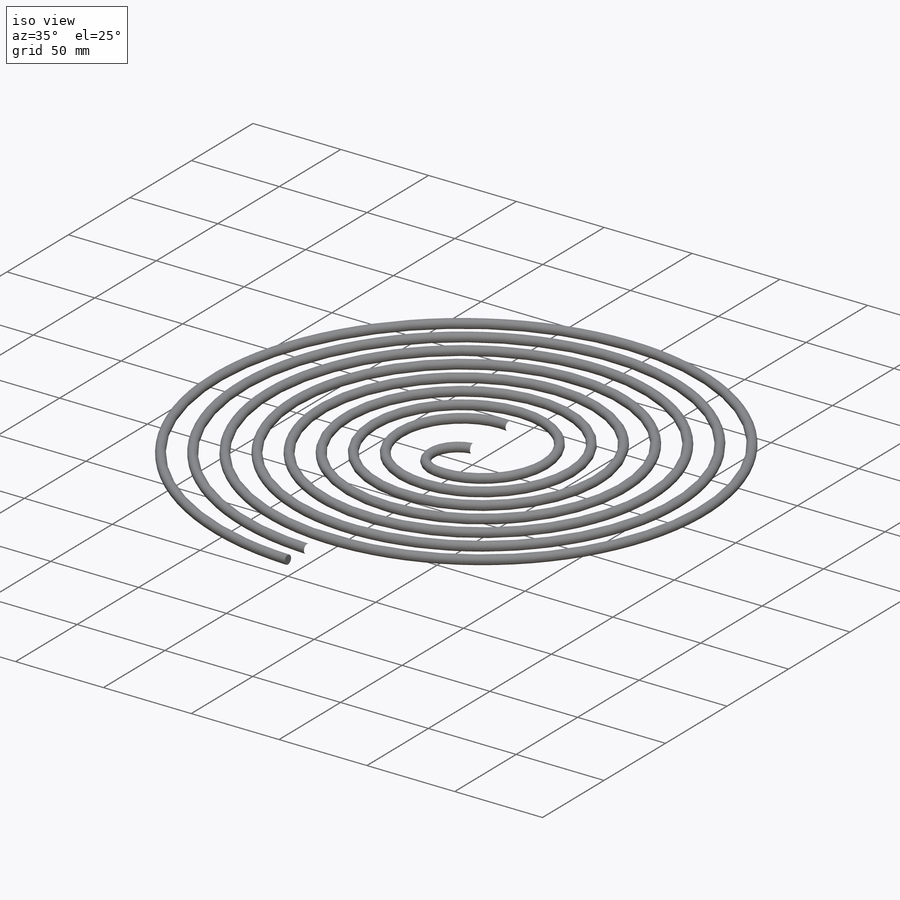
[diagram: iso view]
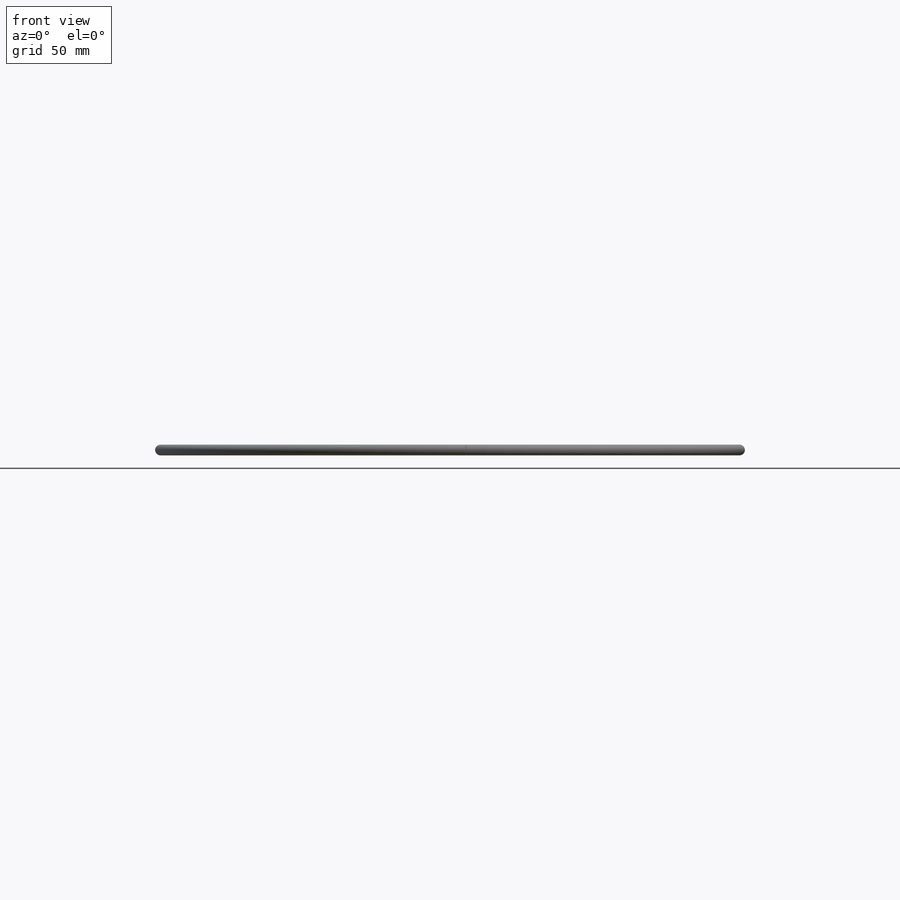
[diagram: front view]
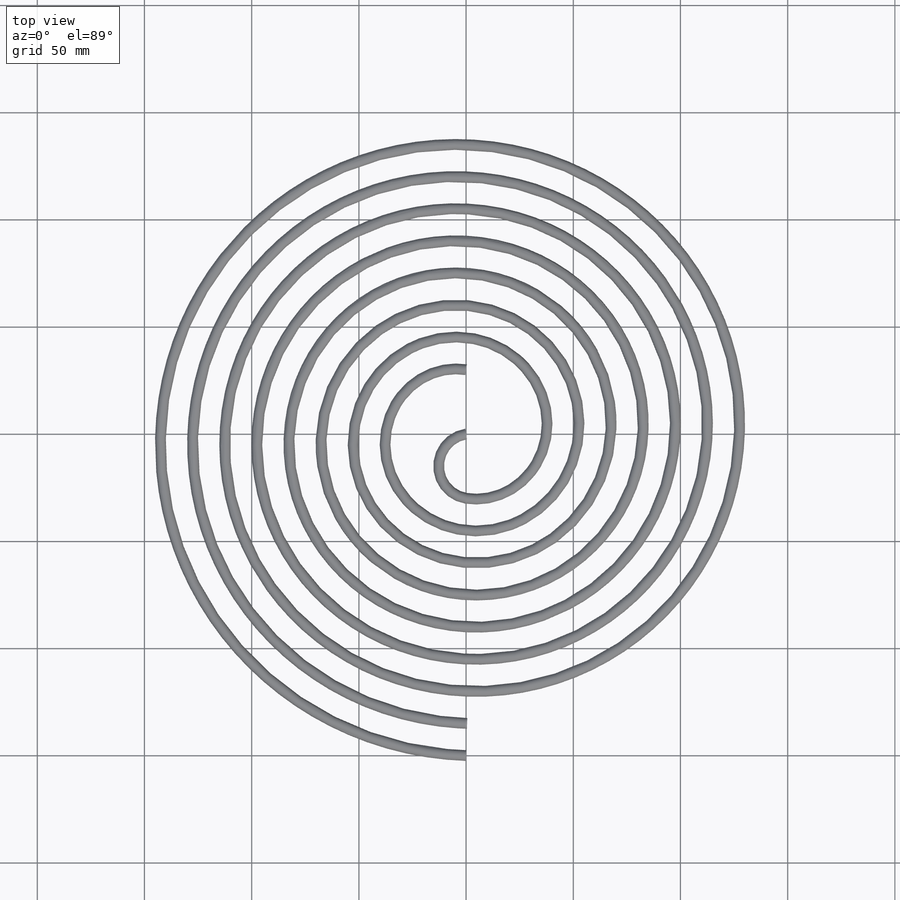
[diagram: top view]
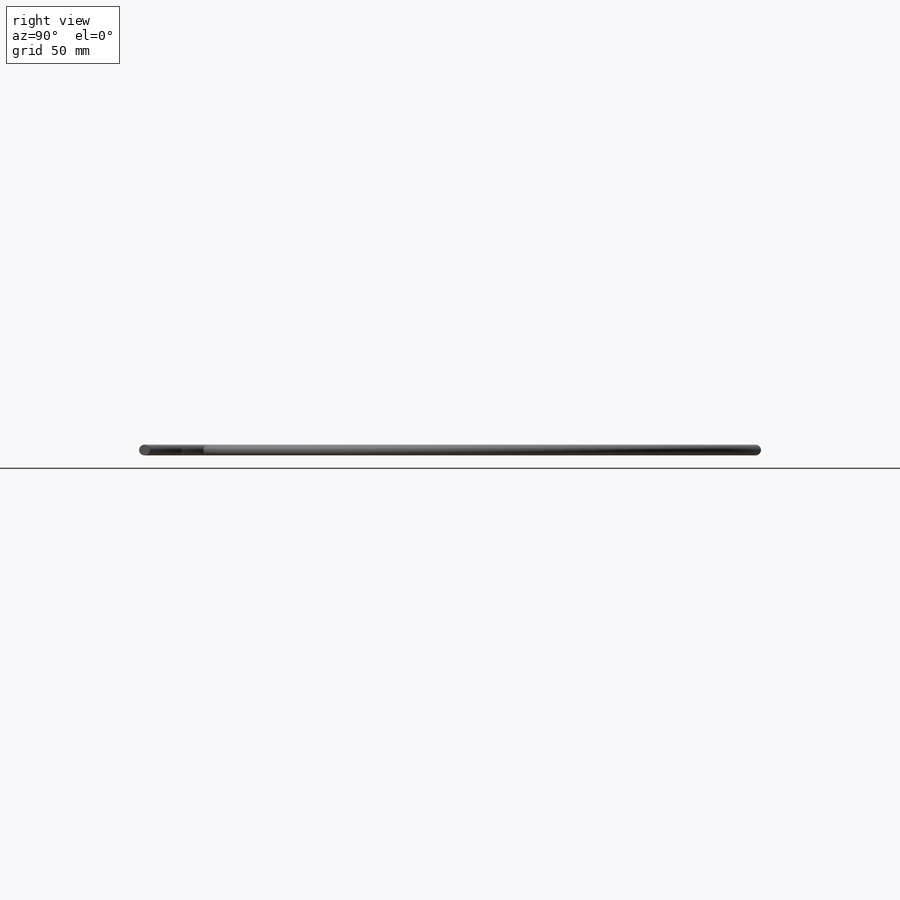
[diagram: right view]
SOLIDWORKS PART (.sldprt)
format: sldprt  version: not decoded by parser v0  size: 752,128 bytes
history: native  units: mm
features: plane x4, sketch x4, material x1, helix x1, sweep x1, pattern_circular x1, cut_extrude x1 + 2 further entries (+10 scaffold rows collapsed)
feature tree (25):
  scaffold x10  (default folders/planes/origin — collapsed)
  material  "Material <nicht festgelegt>"
  plane  "XY"
  plane  "XZ"
  plane  "YZ"
  "Y"
  "Z"
  sketch  "Kreis"  dims[D1=300.0mm]
  helix  "Spirale/Helix1"  Pitch=30mm
  sketch  "Bahn"
  plane  "AE_Profil"
  sketch  "Profil"  dims[D1=5.0mm]
  sweep  "Austragung1"
  pattern_circular  "Kreismuster1"  Count=2  [1 undecoded]
  sketch  "Ende"  dims[D1=17.5mm]
  cut_extrude  "Schnitt-Lin_Ende"  Depth=10mm
decode coverage: 6 of 8 modeling features carry decoded parameters; 2 rows unclassified (native names shown)
note: 1 parameter value undecoded
note: suppression state not decoded; provenance and decode notes live in map.json
